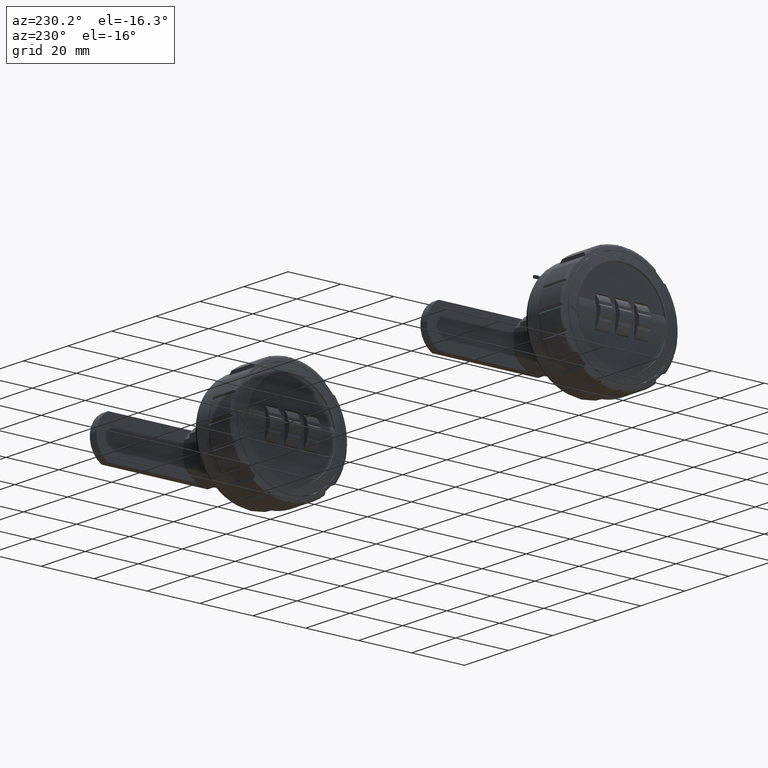
[diagram: clean part render]
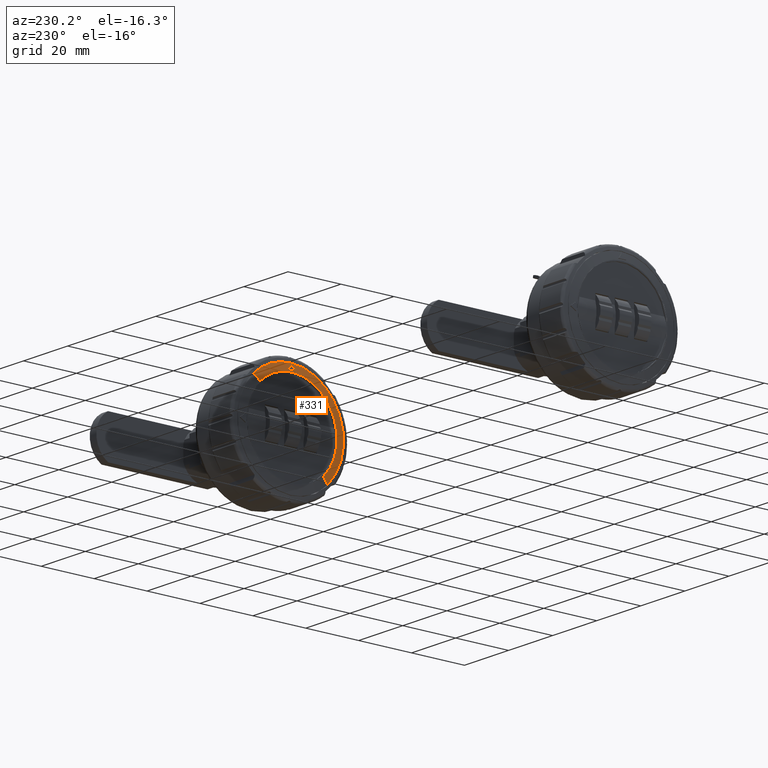
[diagram: same view with one face highlighted and labeled with its STEP entity id]
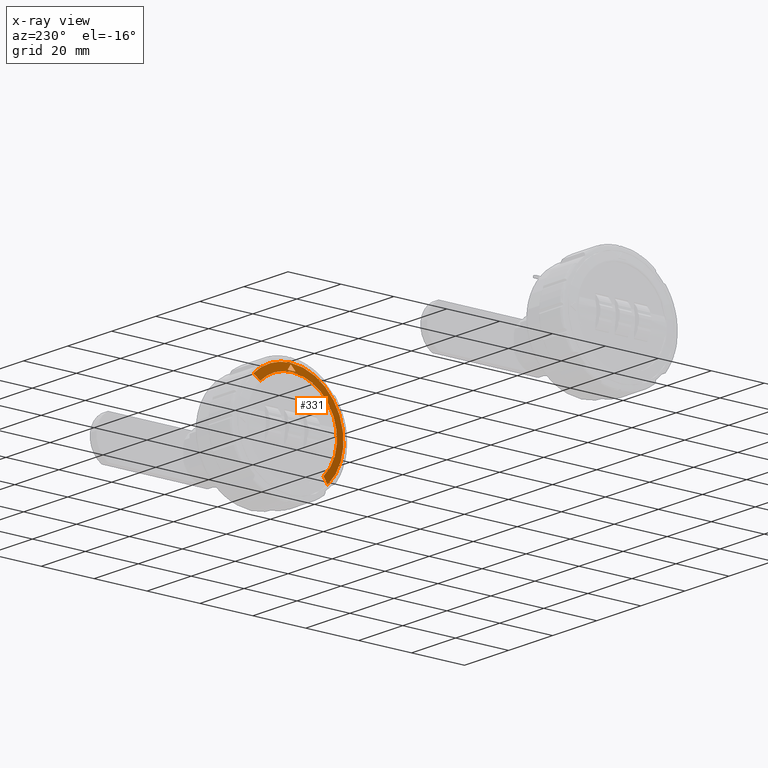
[diagram: x-ray of the same camera — body ghosted, the highlighted face saturated]
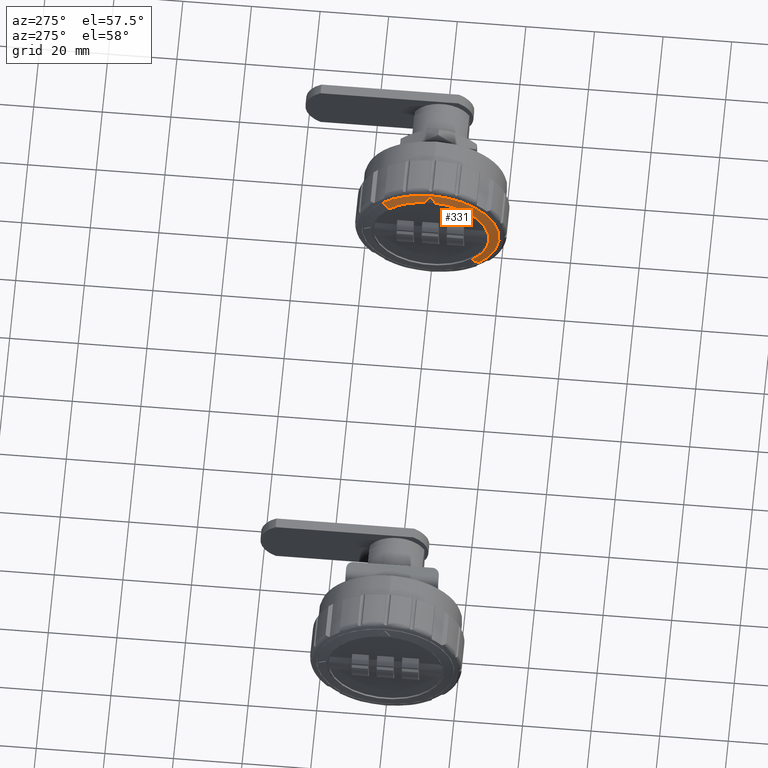
[diagram: same view with one face highlighted and labeled with its STEP entity id]
A machine part, auxiliary view. The second image highlights one B-rep face of the part: STEP entity #331.
The next image is the same camera in x-ray: the body ghosted, the highlighted face saturated — about 0% of this face is hidden behind the body in this view.
A second angle (auxiliary view) of the same face is appended — the face is thin or edge-on in the first view.
In plain terms, the highlighted spherical surface has radius 98.01 mm.
Its self-contained STEP definition (entity closure, byte-faithful):
#331=ADVANCED_FACE('',(#1395,#1396),#1394,.T.);
#1394=SPHERICAL_SURFACE('',#4341,9.80100000000E+01);
#1395=FACE_OUTER_BOUND('',#4342,.T.);
#1396=FACE_BOUND('',#4343,.T.);
#4338=CARTESIAN_POINT('',(7.68100000775E+01,0.00000000000E+00,0.00000000000E+00));
#4339=DIRECTION('',(-1.00000000000E+00,0.00000000000E+00,0.00000000000E+00));
#4340=DIRECTION('',(0.00000000000E+00,-7.00909264300E-01,-7.13250449154E-01));
#4341=AXIS2_PLACEMENT_3D('',#4338,#4339,#4340);
#4342=EDGE_LOOP('',(#6384,#6385,#6386,#6387,#6388,#6389));
#4343=EDGE_LOOP('',(#6390,#6391,#6392,#6393,#6394,#6395));
#6384=ORIENTED_EDGE('',*,*,#7952,.F.);
#6385=ORIENTED_EDGE('',*,*,#7953,.F.);
#6386=ORIENTED_EDGE('',*,*,#7954,.F.);
#6387=ORIENTED_EDGE('',*,*,#7955,.T.);
#6388=ORIENTED_EDGE('',*,*,#7956,.T.);
#6389=ORIENTED_EDGE('',*,*,#7957,.T.);
#6390=ORIENTED_EDGE('',*,*,#7811,.F.);
#6391=ORIENTED_EDGE('',*,*,#7741,.T.);
#6392=ORIENTED_EDGE('',*,*,#7738,.F.);
#6393=ORIENTED_EDGE('',*,*,#7737,.T.);
#6394=ORIENTED_EDGE('',*,*,#7800,.F.);
#6395=ORIENTED_EDGE('',*,*,#7802,.T.);
#7737=EDGE_CURVE('',#8718,#8725,#8732,.T.);
#7738=EDGE_CURVE('',#8718,#8738,#8739,.T.);
#7741=EDGE_CURVE('',#8751,#8738,#8758,.T.);
#7800=EDGE_CURVE('',#9153,#8725,#9160,.T.);
#7802=EDGE_CURVE('',#9153,#9166,#9173,.T.);
#7811=EDGE_CURVE('',#8751,#9166,#9233,.T.);
#7952=EDGE_CURVE('',#10162,#10163,#10164,.T.);
#7953=EDGE_CURVE('',#10170,#10162,#10171,.T.);
#7954=EDGE_CURVE('',#10177,#10170,#10178,.T.);
#7955=EDGE_CURVE('',#10177,#10184,#10185,.T.);
#7956=EDGE_CURVE('',#10184,#10191,#10192,.T.);
#7957=EDGE_CURVE('',#10191,#10163,#10198,.T.);
#8718=VERTEX_POINT('',#14747);
#8725=VERTEX_POINT('',#14751);
#8732=(BOUNDED_CURVE() B_SPLINE_CURVE(3,(#14755,#14756,#14757,#14758,#14759,#14760,#14761,#14762,#14763,#14764,#14765,#14766,#14767,#14768,#14769,#14770,#14771,#14772,#14773),.UNSPECIFIED.,.F.,.F.) B_SPLINE_CURVE_WITH_KNOTS((4,3,3,3,3,3,4),(2.63207080096E-07,3.37000276568E-05,6.74316177899E-05,1.00716615256E-04,1.33660485042E-04,1.66686655976E-04,1.85464778127E-04),.UNSPECIFIED.) CURVE() GEOMETRIC_REPRESENTATION_ITEM() RATIONAL_B_SPLINE_CURVE((1.00000000000E+00,1.00000000000E+00,1.00000000000E+00,1.00000000000E+00,1.00000000000E+00,1.00000000000E+00,1.00000000000E+00,1.00000000000E+00,1.00000000000E+00,1.00000000000E+00,1.00000000000E+00,1.00000000000E+00,1.00000000000E+00,1.00000000000E+00,1.00000000000E+00,1.00000000000E+00,1.00000000000E+00,1.00000000000E+00,1.00000000000E+00)) REPRESENTATION_ITEM('') );
#8738=VERTEX_POINT('',#14774);
#8739=CIRCLE('',#14778,9.73047811631E+01);
#8751=VERTEX_POINT('',#14782);
#8758=(BOUNDED_CURVE() B_SPLINE_CURVE(3,(#14786,#14787,#14788,#14789,#14790,#14791,#14792,#14793,#14794,#14795,#14796,#14797,#14798,#14799,#14800,#14801,#14802,#14803,#14804,#14805,#14806,#14807),.UNSPECIFIED.,.F.,.F.) B_SPLINE_CURVE_WITH_KNOTS((4,3,3,3,3,3,3,4),(1.97189536293E-07,3.32344820060E-05,6.64507507347E-05,9.99488422620E-05,1.33988498409E-04,1.68500596536E-04,2.03206345710E-04,2.22866197803E-04),.UNSPECIFIED.) CURVE() GEOMETRIC_REPRESENTATION_ITEM() RATIONAL_B_SPLINE_CURVE((1.00000000000E+00,1.00000000000E+00,1.00000000000E+00,1.00000000000E+00,1.00000000000E+00,1.00000000000E+00,1.00000000000E+00,1.00000000000E+00,1.00000000000E+00,1.00000000000E+00,1.00000000000E+00,1.00000000000E+00,1.00000000000E+00,1.00000000000E+00,1.00000000000E+00,1.00000000000E+00,1.00000000000E+00,1.00000000000E+00,1.00000000000E+00,1.00000000000E+00,1.00000000000E+00,1.00000000000E+00)) REPRESENTATION_ITEM('') );
#9153=VERTEX_POINT('',#15085);
#9160=CIRCLE('',#15092,9.73105398787E+01);
#9166=VERTEX_POINT('',#15093);
#9173=(BOUNDED_CURVE() B_SPLINE_CURVE(3,(#15097,#15098,#15099,#15100,#15101,#15102,#15103,#15104,#15105,#15106,#15107,#15108,#15109,#15110,#15111,#15112,#15113,#15114,#15115,#15116,#15117,#15118),.UNSPECIFIED.,.F.,.F.) B_SPLINE_CURVE_WITH_KNOTS((4,3,3,3,3,3,3,4),(2.48914962009E-07,3.43442206454E-05,6.86680696184E-05,1.03279791329E-04,1.37951770937E-04,1.72315120144E-04,2.06140780643E-04,2.22882857185E-04),.UNSPECIFIED.) CURVE() GEOMETRIC_REPRESENTATION_ITEM() RATIONAL_B_SPLINE_CURVE((1.00000000000E+00,1.00000000000E+00,1.00000000000E+00,1.00000000000E+00,1.00000000000E+00,1.00000000000E+00,1.00000000000E+00,1.00000000000E+00,1.00000000000E+00,1.00000000000E+00,1.00000000000E+00,1.00000000000E+00,1.00000000000E+00,1.00000000000E+00,1.00000000000E+00,1.00000000000E+00,1.00000000000E+00,1.00000000000E+00,1.00000000000E+00,1.00000000000E+00,1.00000000000E+00,1.00000000000E+00)) REPRESENTATION_ITEM('') );
#9233=CIRCLE('',#15160,9.64350045232E+01);
#10162=VERTEX_POINT('',#15684);
#10163=VERTEX_POINT('',#15685);
#10164=CIRCLE('',#15689,1.70816376158E+01);
#10170=VERTEX_POINT('',#15690);
#10171=CIRCLE('',#15694,1.70816376158E+01);
#10177=VERTEX_POINT('',#15695);
#10178=(BOUNDED_CURVE() B_SPLINE_CURVE(2,(#15696,#15697,#15698),.UNSPECIFIED.,.F.,.F.) B_SPLINE_CURVE_WITH_KNOTS((3,3),(0.00000000000E+00,1.00000000000E+00),.UNSPECIFIED.) CURVE() GEOMETRIC_REPRESENTATION_ITEM() RATIONAL_B_SPLINE_CURVE((1.00000000000E+00,9.99885051603E-01,1.00000000000E+00)) REPRESENTATION_ITEM('') );
#10184=VERTEX_POINT('',#15699);
#10185=CIRCLE('',#15703,1.99999995530E+01);
#10191=VERTEX_POINT('',#15704);
#10192=CIRCLE('',#15708,1.99999995530E+01);
#10198=(BOUNDED_CURVE() B_SPLINE_CURVE(2,(#15709,#15710,#15711),.UNSPECIFIED.,.F.,.F.) B_SPLINE_CURVE_WITH_KNOTS((3,3),(0.00000000000E+00,1.00000000000E+00),.UNSPECIFIED.) CURVE() GEOMETRIC_REPRESENTATION_ITEM() RATIONAL_B_SPLINE_CURVE((7.50000000000E-01,7.49913788703E-01,7.50000000000E-01)) REPRESENTATION_ITEM('') );
#14747=CARTESIAN_POINT('',(-1.92620430226E+01,1.08554535538E-01,1.93935775580E+01));
#14751=CARTESIAN_POINT('',(-1.92620928211E+01,-5.13504972998E-02,1.93935666964E+01));
#14755=CARTESIAN_POINT('',(-1.92620430226E+01,1.08554535538E-01,1.93935775580E+01));
#14756=CARTESIAN_POINT('',(-1.92602745126E+01,1.01944327874E-01,1.94023754154E+01));
#14757=CARTESIAN_POINT('',(-1.92587021514E+01,9.37293674496E-02,1.94102006965E+01));
#14758=CARTESIAN_POINT('',(-1.92574579088E+01,8.45487348818E-02,1.94163968739E+01));
#14759=CARTESIAN_POINT('',(-1.92562031681E+01,7.52906429056E-02,1.94226453301E+01));
#14760=CARTESIAN_POINT('',(-1.92552482357E+01,6.47914296160E-02,1.94274057693E+01));
#14761=CARTESIAN_POINT('',(-1.92546793189E+01,5.39321463324E-02,1.94302486808E+01));
#14762=CARTESIAN_POINT('',(-1.92541178236E+01,4.32145221853E-02,1.94330545065E+01));
#14763=CARTESIAN_POINT('',(-1.92539168549E+01,3.18472599892E-02,1.94340698879E+01));
#14764=CARTESIAN_POINT('',(-1.92540946323E+01,2.07895862511E-02,1.94332029109E+01));
#14765=CARTESIAN_POINT('',(-1.92542706497E+01,9.84138697919E-03,1.94323445172E+01));
#14766=CARTESIAN_POINT('',(-1.92548224250E+01,-1.10397667466E-03,1.94296190642E+01));
#14767=CARTESIAN_POINT('',(-1.92557013594E+01,-1.11496006710E-02,1.94252666164E+01));
#14768=CARTESIAN_POINT('',(-1.92565826618E+01,-2.12222886485E-02,1.94209024427E+01));
#14769=CARTESIAN_POINT('',(-1.92578161881E+01,-3.06639040477E-02,1.94147871215E+01));
#14770=CARTESIAN_POINT('',(-1.92592974204E+01,-3.87316712619E-02,1.94074387317E+01));
#14771=CARTESIAN_POINT('',(-1.92601474675E+01,-4.33615881259E-02,1.94032216499E+01));
#14772=CARTESIAN_POINT('',(-1.92610877309E+01,-4.76031447343E-02,1.93985556473E+01));
#14773=CARTESIAN_POINT('',(-1.92620928211E+01,-5.13504972998E-02,1.93935666964E+01));
#14774=CARTESIAN_POINT('',(-1.95854931657E+01,1.41101395040E+00,1.76600685739E+01));
#14775=CARTESIAN_POINT('',(7.68100000775E+01,9.38295238232E+00,7.04981328737E+00));
#14776=DIRECTION('',(0.00000000000E+00,-7.99484419590E-01,-6.00686825918E-01));
#14777=DIRECTION('',(-0.00000000000E+00,-6.00686825918E-01,7.99484419590E-01));
#14778=AXIS2_PLACEMENT_3D('',#14775,#14776,#14777);
#14782=CARTESIAN_POINT('',(-1.96158178562E+01,1.33106566790E+00,1.75000000000E+01));
#14786=CARTESIAN_POINT('',(-1.96158178562E+01,1.33106566790E+00,1.75000000000E+01));
#14787=CARTESIAN_POINT('',(-1.96156658546E+01,1.34207705533E+00,1.75000000000E+01));
#14788=CARTESIAN_POINT('',(-1.96151702812E+01,1.35323350995E+00,1.75018713755E+01));
#14789=CARTESIAN_POINT('',(-1.96143742913E+01,1.36361887391E+00,1.75054468997E+01));
#14790=CARTESIAN_POINT('',(-1.96135737998E+01,1.37406297120E+00,1.75090426448E+01));
#14791=CARTESIAN_POINT('',(-1.96124480224E+01,1.38401240672E+00,1.75144578770E+01));
#14792=CARTESIAN_POINT('',(-1.96110925241E+01,1.39267046631E+00,1.75212291373E+01));
#14793=CARTESIAN_POINT('',(-1.96097254393E+01,1.40140253318E+00,1.75280582769E+01));
#14794=CARTESIAN_POINT('',(-1.96080881056E+01,1.40905863781E+00,1.75364491737E+01));
#14795=CARTESIAN_POINT('',(-1.96063149206E+01,1.41504556579E+00,1.75457102519E+01));
#14796=CARTESIAN_POINT('',(-1.96045134140E+01,1.42112811747E+00,1.75551192487E+01));
#14797=CARTESIAN_POINT('',(-1.96025230095E+01,1.42565358855E+00,1.75656805337E+01));
#14798=CARTESIAN_POINT('',(-1.96005051921E+01,1.42827383131E+00,1.75765357087E+01));
#14799=CARTESIAN_POINT('',(-1.95984599550E+01,1.43092968001E+00,1.75875383923E+01));
#14800=CARTESIAN_POINT('',(-1.95963305013E+01,1.43170068078E+00,1.75991445753E+01));
#14801=CARTESIAN_POINT('',(-1.95942913823E+01,1.43052308981E+00,1.76104029432E+01));
#14802=CARTESIAN_POINT('',(-1.95922413666E+01,1.42933920598E+00,1.76217214741E+01));
#14803=CARTESIAN_POINT('',(-1.95902256811E+01,1.42615101658E+00,1.76330031669E+01));
#14804=CARTESIAN_POINT('',(-1.95884144038E+01,1.42120609668E+00,1.76432978417E+01));
#14805=CARTESIAN_POINT('',(-1.95873784435E+01,1.41837784923E+00,1.76491858821E+01));
#14806=CARTESIAN_POINT('',(-1.95863951880E+01,1.41494976345E+00,1.76548305212E+01));
#14807=CARTESIAN_POINT('',(-1.95854931452E+01,1.41101411763E+00,1.76600686723E+01));
#15085=CARTESIAN_POINT('',(-1.95863207363E+01,-1.35344162118E+00,1.76600571722E+01));
#15089=CARTESIAN_POINT('',(7.68100000775E+01,-9.34565618195E+00,7.01980334766E+00));
#15090=DIRECTION('',(0.00000000000E+00,7.99566080903E-01,-6.00578123369E-01));
#15091=DIRECTION('',(-0.00000000000E+00,-6.00578123369E-01,-7.99566080903E-01));
#15092=AXIS2_PLACEMENT_3D('',#15089,#15090,#15091);
#15093=CARTESIAN_POINT('',(-1.96165955058E+01,-1.27348506823E+00,1.75000000000E+01));
#15097=CARTESIAN_POINT('',(-1.95863207461E+01,-1.35344200655E+00,1.76600573727E+01));
#15098=CARTESIAN_POINT('',(-1.95878749696E+01,-1.36020346735E+00,1.76510555519E+01));
#15099=CARTESIAN_POINT('',(-1.95896805402E+01,-1.36547497235E+00,1.76407846784E+01));
#15100=CARTESIAN_POINT('',(-1.95915866580E+01,-1.36884743223E+00,1.76301001583E+01));
#15101=CARTESIAN_POINT('',(-1.95935059841E+01,-1.37224326142E+00,1.76193416003E+01));
#15102=CARTESIAN_POINT('',(-1.95955798375E+01,-1.37380857228E+00,1.76078687590E+01));
#15103=CARTESIAN_POINT('',(-1.95976387704E+01,-1.37342786477E+00,1.75966180748E+01));
#15104=CARTESIAN_POINT('',(-1.95997145355E+01,-1.37304404493E+00,1.75852754145E+01));
#15105=CARTESIAN_POINT('',(-1.96018324126E+01,-1.37067107887E+00,1.75738456179E+01));
#15106=CARTESIAN_POINT('',(-1.96038172780E+01,-1.36649707007E+00,1.75632744297E+01));
#15107=CARTESIAN_POINT('',(-1.96058051479E+01,-1.36231674309E+00,1.75526872400E+01));
#15108=CARTESIAN_POINT('',(-1.96077150579E+01,-1.35621084374E+00,1.75426660956E+01));
#15109=CARTESIAN_POINT('',(-1.96093838362E+01,-1.34867250204E+00,1.75340693562E+01));
#15110=CARTESIAN_POINT('',(-1.96110376797E+01,-1.34120162516E+00,1.75255495537E+01));
#15111=CARTESIAN_POINT('',(-1.96125010321E+01,-1.33211100278E+00,1.75181902945E+01));
#15112=CARTESIAN_POINT('',(-1.96136447604E+01,-1.32215752430E+00,1.75126444505E+01));
#15113=CARTESIAN_POINT('',(-1.96147707764E+01,-1.31235819112E+00,1.75071844927E+01));
#15114=CARTESIAN_POINT('',(-1.96156184170E+01,-1.30144561144E+00,1.75033300938E+01));
#15115=CARTESIAN_POINT('',(-1.96161116198E+01,-1.29034348483E+00,1.75014312738E+01));
#15116=CARTESIAN_POINT('',(-1.96163584369E+01,-1.28478756684E+00,1.75004810334E+01));
#15117=CARTESIAN_POINT('',(-1.96165209997E+01,-1.27912657059E+00,1.75000000000E+01));
#15118=CARTESIAN_POINT('',(-1.96165955058E+01,-1.27348506823E+00,1.75000000000E+01));
#15157=CARTESIAN_POINT('',(7.68100000775E+01,0.00000000000E+00,1.75000000745E+01));
#15158=DIRECTION('',(0.00000000000E+00,0.00000000000E+00,1.00000000000E+00));
#15159=DIRECTION('',(-9.99904737880E-01,1.38027231325E-02,-0.00000000000E+00));
#15160=AXIS2_PLACEMENT_3D('',#15157,#15158,#15159);
#15684=CARTESIAN_POINT('',(-1.96999877806E+01,0.00000000000E+00,1.70816376158E+01));
#15685=CARTESIAN_POINT('',(-1.96999877806E+01,1.19740623153E+01,1.21821252377E+01));
#15686=CARTESIAN_POINT('',(-1.96999877806E+01,0.00000000000E+00,0.00000000000E+00));
#15687=DIRECTION('',(-1.00000000000E+00,0.00000000000E+00,0.00000000000E+00));
#15688=DIRECTION('',(0.00000000000E+00,-1.22460635382E-16,1.00000000000E+00));
#15689=AXIS2_PLACEMENT_3D('',#15686,#15687,#15688);
#15690=CARTESIAN_POINT('',(-1.96999877806E+01,-1.19726780371E+01,-1.21834857186E+01));
#15691=CARTESIAN_POINT('',(-1.96999877806E+01,0.00000000000E+00,0.00000000000E+00));
#15692=DIRECTION('',(-1.00000000000E+00,0.00000000000E+00,0.00000000000E+00));
#15693=DIRECTION('',(0.00000000000E+00,-1.22460635382E-16,1.00000000000E+00));
#15694=AXIS2_PLACEMENT_3D('',#15691,#15692,#15693);
#15695=CARTESIAN_POINT('',(-1.91376946206E+01,-1.40181849727E+01,-1.42650086642E+01));
#15696=CARTESIAN_POINT('',(-1.91376946206E+01,-1.40181849727E+01,-1.42650086642E+01));
#15697=CARTESIAN_POINT('',(-1.94409677177E+01,-1.29984196367E+01,-1.32272879193E+01));
#15698=CARTESIAN_POINT('',(-1.96999877806E+01,-1.19726780543E+01,-1.21834857017E+01));
#15699=CARTESIAN_POINT('',(-1.91376946206E+01,0.00000000000E+00,1.99999995530E+01));
#15700=CARTESIAN_POINT('',(-1.91376946206E+01,0.00000000000E+00,0.00000000000E+00));
#15701=DIRECTION('',(-1.00000000000E+00,0.00000000000E+00,0.00000000000E+00));
#15702=DIRECTION('',(0.00000000000E+00,-1.22460635382E-16,1.00000000000E+00));
#15703=AXIS2_PLACEMENT_3D('',#15700,#15701,#15702);
#15704=CARTESIAN_POINT('',(-1.91376946206E+01,1.40182003109E+01,1.42649935914E+01));
#15705=CARTESIAN_POINT('',(-1.91376946206E+01,0.00000000000E+00,0.00000000000E+00));
#15706=DIRECTION('',(-1.00000000000E+00,0.00000000000E+00,0.00000000000E+00));
#15707=DIRECTION('',(0.00000000000E+00,-1.22460635382E-16,1.00000000000E+00));
#15708=AXIS2_PLACEMENT_3D('',#15705,#15706,#15707);
#15709=CARTESIAN_POINT('',(-1.91376946206E+01,1.40181849727E+01,1.42650086642E+01));
#15710=CARTESIAN_POINT('',(-1.94409677177E+01,1.29984196367E+01,1.32272879193E+01));
#15711=CARTESIAN_POINT('',(-1.96999877806E+01,1.19726780543E+01,1.21834857017E+01));